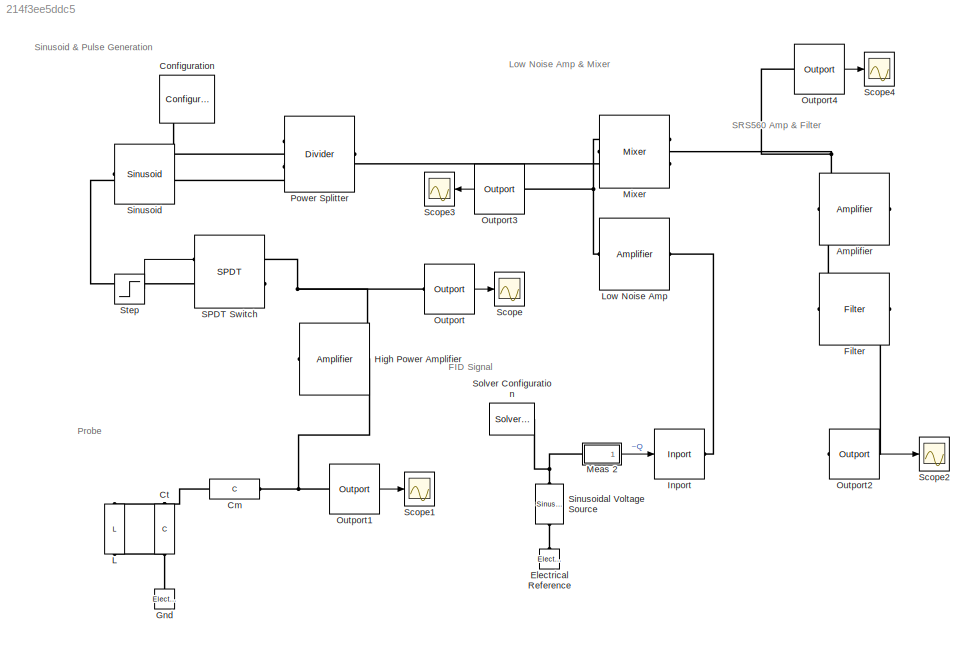
MODEL slx_214f3ee5ddc5
KIND model
CONFIG AbsTol = auto
CONFIG EnableMultiTasking = off
CONFIG FixedStep = auto
CONFIG MaxStep = auto
CONFIG MinStep = auto
CONFIG RelTol = 1e-3
CONFIG SampleTimeConstraint = Unconstrained
CONFIG SolverName = VariableStepAuto
CONFIG StartTime = 0.0
CONFIG StopTime = 500e-6
BLOCK [Reference] Amplifier  REF=simrfV2elements/Amplifier
  NameLocation = top
  Ports = [0, 0, 0, 0, 0, 1, 1]
  SourceBlock = simrfV2elements/Amplifier
  SourceProductBaseCode = RB
  SourceType = Amplifier
BLOCK [Reference] Cm  REF=simrfV2elements/C
  Ports = [0, 0, 0, 0, 0, 1, 1]
  SourceBlock = simrfV2elements/C
  SourceProductBaseCode = RB
  SourceType = Capacitor
BLOCK [Reference] Configuration  REF=simrfV2util1/Configuration
  NameLocation = top
  Ports = [0, 0, 0, 0, 0, 1]
  SourceBlock = simrfV2util1/Configuration
  SourceProductBaseCode = RB
  SourceType = Configuration
BLOCK [Reference] Ct  REF=simrfV2elements/C
  NameLocation = left
  Ports = [0, 0, 0, 0, 0, 1, 1]
  SourceBlock = simrfV2elements/C
  SourceProductBaseCode = RB
  SourceType = Capacitor
BLOCK [Reference] Electrical Reference  REF=fl_lib/Electrical/Electrical Elements/Electrical Reference
  NameLocation = right
  Ports = [0, 0, 0, 0, 0, 1]
  SourceBlock = fl_lib/Electrical/Electrical Elements/Electrical Reference
  SourceProductBaseCode = SS
  SourceType = Electrical Reference
BLOCK [Reference] Filter  REF=simrfV2elements/Filter
  NameLocation = top
  Ports = [0, 0, 0, 0, 0, 1, 1]
  SourceBlock = simrfV2elements/Filter
  SourceProductBaseCode = RB
  SourceType = Filter
  UserDataPersistent = on
BLOCK [Reference] Gnd  REF=simrfV2_lib/Elements/Electrical Reference
  Ports = [0, 0, 0, 0, 0, 1]
  SourceBlock = simrfV2_lib/Elements/Electrical Reference
  SourceProductBaseCode = RB
  SourceType = Electrical Reference
BLOCK [Reference] High Power Amplifier  REF=simrfV2elements/Amplifier
  NameLocation = top
  Ports = [0, 0, 0, 0, 0, 1, 1]
  SourceBlock = simrfV2elements/Amplifier
  SourceProductBaseCode = RB
  SourceType = Amplifier
BLOCK [Reference] Inport  REF=simrfV2util1/Inport
  Ports = [1, 0, 0, 0, 0, 0, 1]
  SourceBlock = simrfV2util1/Inport
  SourceProductBaseCode = RB
  SourceType = Inport
BLOCK [Reference] L  REF=simrfV2elements/L
  NameLocation = left
  Ports = [0, 0, 0, 0, 0, 1, 1]
  SourceBlock = simrfV2elements/L
  SourceProductBaseCode = RB
  SourceType = Inductor
BLOCK [Reference] Low Noise Amp  REF=simrfV2elements/Amplifier
  Ports = [0, 0, 0, 0, 0, 1, 1]
  SourceBlock = simrfV2elements/Amplifier
  SourceProductBaseCode = RB
  SourceType = Amplifier
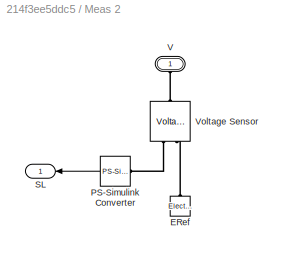
BLOCK [SubSystem] Meas 2
  Ports = [0, 1, 0, 0, 0, 1]
  RequestExecContextInheritance = off
BLOCK [Reference] Meas 2/ERef  REF=fl_lib/Electrical/Electrical Elements/Electrical Reference
  NameLocation = right
  Ports = [0, 0, 0, 0, 0, 1]
  SourceBlock = fl_lib/Electrical/Electrical Elements/Electrical Reference
  SourceProductName = Foundation Library
  SourceType = Electrical Reference
BLOCK [Reference] Meas 2/PS-Simulink Converter  REF=nesl_utility/PS-Simulink
Converter
  Ports = [0, 1, 0, 0, 0, 1]
  SourceBlock = nesl_utility/PS-Simulink\nConverter
  SourceProductName = Utilities
  SourceType = PS-Simulink\nConverter
BLOCK [Outport] Meas 2/SL
  SignalType = real
  VectorParamsAs1DForOutWhenUnconnected = off
BLOCK [PMIOPort] Meas 2/V
  NameLocation = right
  Side = Left
BLOCK [Reference] Meas 2/Voltage Sensor  REF=fl_lib/Electrical/Electrical Sensors/Voltage Sensor
  NameLocation = right
  Ports = [0, 0, 0, 0, 0, 1, 2]
  SourceBlock = fl_lib/Electrical/Electrical Sensors/Voltage Sensor
  SourceProductName = Foundation Library
  SourceType = Voltage Sensor
BLOCK [Reference] Mixer  REF=simrfV2elements/Mixer
  NameLocation = top
  Ports = [0, 0, 0, 0, 0, 2, 1]
  SourceBlock = simrfV2elements/Mixer
  SourceProductBaseCode = RB
  SourceType = Mixer
BLOCK [Reference] Outport  REF=simrfV2util1/Outport
  Ports = [0, 1, 0, 0, 0, 1]
  SourceBlock = simrfV2util1/Outport
  SourceProductBaseCode = RB
  SourceType = Outport
BLOCK [Reference] Outport1  REF=simrfV2util1/Outport
  Ports = [0, 1, 0, 0, 0, 1]
  SourceBlock = simrfV2util1/Outport
  SourceProductBaseCode = RB
  SourceType = Outport
BLOCK [Reference] Outport2  REF=simrfV2util1/Outport
  Ports = [0, 1, 0, 0, 0, 1]
  SourceBlock = simrfV2util1/Outport
  SourceProductBaseCode = RB
  SourceType = Outport
BLOCK [Reference] Outport3  REF=simrfV2util1/Outport
  Ports = [0, 1, 0, 0, 0, 1]
  SourceBlock = simrfV2util1/Outport
  SourceProductBaseCode = RB
  SourceType = Outport
BLOCK [Reference] Outport4  REF=simrfV2util1/Outport
  Ports = [0, 1, 0, 0, 0, 1]
  SourceBlock = simrfV2util1/Outport
  SourceProductBaseCode = RB
  SourceType = Outport
BLOCK [Reference] Power Splitter  REF=simrfV2junction1/Divider
  NameLocation = top
  Ports = [0, 0, 0, 0, 0, 2, 1]
  SourceBlock = simrfV2junction1/Divider
  SourceProductBaseCode = RB
  SourceType = Ideal Dividers
  UserDataPersistent = on
BLOCK [Reference] SPDT Switch  REF=simrfV2junction1/SPDT
  Ports = [1, 0, 0, 0, 0, 1, 2]
  SourceBlock = simrfV2junction1/SPDT
  SourceProductBaseCode = RB
  SourceType = Switch SPDT
BLOCK [Scope] Scope
  Floating = off
  NumInputPorts = 1
  Ports = [1]
  ScopeSpecificationString = Simulink.scopes.TimeScopeBlockCfg('CurrentConfiguration', extmgr.ConfigurationSet(extmgr.Configuration('Core','General UI',true),extmgr.Configuration('Core','Source UI',true),extmgr.Configuration('Sources','WiredSimulink',true),extmgr.Configuration('Visuals','Time Domain',true,'SerializedDisplays',{struct('MinYLimReal','-0.2639','MaxYLimReal','0.27029','YLabelReal','','MinYLimMag','0.00000','MaxYL...<+1399ch>
BLOCK [Scope] Scope1
  Floating = off
  NumInputPorts = 1
  Ports = [1]
  ScopeSpecificationString = Simulink.scopes.TimeScopeBlockCfg('CurrentConfiguration', extmgr.ConfigurationSet(extmgr.Configuration('Core','General UI',true),extmgr.Configuration('Core','Source UI',true),extmgr.Configuration('Sources','WiredSimulink',true,'DataLoggingVariableName','ScopeData1'),extmgr.Configuration('Visuals','Time Domain',true,'SerializedDisplays',{struct('MinYLimReal','-66.43236','MaxYLimReal','66.46356','YL...<+1459ch>
BLOCK [Scope] Scope2
  Floating = off
  NumInputPorts = 1
  Ports = [1]
  ScopeSpecificationString = Simulink.scopes.TimeScopeBlockCfg('CurrentConfiguration', extmgr.ConfigurationSet(extmgr.Configuration('Core','General UI',true),extmgr.Configuration('Core','Source UI',true),extmgr.Configuration('Sources','WiredSimulink',true,'DataLoggingVariableName','ScopeData2'),extmgr.Configuration('Visuals','Time Domain',true,'SerializedDisplays',{struct('MinYLimReal','-0.03214','MaxYLimReal','0.02366','YLab...<+1466ch>
BLOCK [Scope] Scope3
  Floating = off
  NumInputPorts = 1
  Ports = [1]
  ScopeSpecificationString = Simulink.scopes.TimeScopeBlockCfg('CurrentConfiguration', extmgr.ConfigurationSet(extmgr.Configuration('Core','General UI',true),extmgr.Configuration('Core','Source UI',true),extmgr.Configuration('Sources','WiredSimulink',true,'DataLoggingVariableName','ScopeData3'),extmgr.Configuration('Visuals','Time Domain',true,'SerializedDisplays',{struct('MinYLimReal','-6643.21945','MaxYLimReal','6646.37943'...<+1475ch>
BLOCK [Scope] Scope4
  Floating = off
  NumInputPorts = 1
  Ports = [1]
  ScopeSpecificationString = Simulink.scopes.TimeScopeBlockCfg('CurrentConfiguration', extmgr.ConfigurationSet(extmgr.Configuration('Core','General UI',true),extmgr.Configuration('Core','Source UI',true),extmgr.Configuration('Sources','WiredSimulink',true,'DataLoggingVariableName','ScopeData4'),extmgr.Configuration('Visuals','Time Domain',true,'SerializedDisplays',{struct('MinYLimReal','-0.00131','MaxYLimReal','0.00138','YLab...<+1453ch>
BLOCK [Reference] Sinusoid  REF=simrfV2sources1/Sinusoid
  Ports = [0, 0, 0, 0, 0, 1]
  SourceBlock = simrfV2sources1/Sinusoid
  SourceProductBaseCode = RB
  SourceType = Sinusoidal Source
BLOCK [Reference] Sinusoidal Voltage Source  REF=ee_lib/Additional
Components/SPICE Sources/Sinusoidal Voltage
Source
  NameLocation = right
  Ports = [0, 0, 0, 0, 0, 1, 1]
  SourceBlock = ee_lib/Additional\nComponents/SPICE Sources/Sinusoidal Voltage\nSource
  SourceProductBaseCode = PS
  SourceType = Sinusoidal Voltage\nSource
BLOCK [Reference] Solver Configuration  REF=nesl_utility/Solver
Configuration
  Ports = [0, 0, 0, 0, 0, 0, 1]
  SourceBlock = nesl_utility/Solver\nConfiguration
  SourceProductBaseCode = SS
  SourceType = Solver\nConfiguration
BLOCK [Step] Step
  After = 3.5
  SampleTime = 0
  Time = 5e-6
ANNOTATION (root): FID Signal
ANNOTATION (root): Probe
ANNOTATION (root): Sinusoid & Pulse Generation
ANNOTATION (root): SRS560 Amp & Filter
ANNOTATION (root): Low Noise Amp & Mixer
LINE Meas 2/PS-Simulink Converter:1 -> Meas 2/SL:1
LINE Meas 2:1 -> Inport:1
LINE Outport1:1 -> Scope1:1
LINE Outport2:1 -> Scope2:1
LINE Outport3:1 -> Scope3:1
LINE Outport4:1 -> Scope4:1
LINE Outport:1 -> Scope:1
LINE Step:1 -> SPDT Switch:1
PNET net1: Amplifier:LConn1 -- Mixer:RConn1 -- Outport4:LConn1
PLINE Amplifier:RConn1 -- Filter:LConn1
PNET net2: Cm:LConn1 -- Ct:LConn1 -- L:LConn1
PNET net3: Cm:RConn1 -- High Power Amplifier:RConn1 -- Outport1:LConn1
PNET net4: Configuration:LConn1 -- Power Splitter:RConn1 -- Sinusoid:LConn1
PNET net5: Ct:RConn1 -- Gnd:LConn1 -- L:RConn1
PLINE Electrical Reference:LConn1 -- Sinusoidal Voltage Source:RConn1
PLINE Filter:RConn1 -- Outport2:LConn1
PNET net6: High Power Amplifier:LConn1 -- Outport:LConn1 -- SPDT Switch:RConn1
PLINE Inport:RConn1 -- Low Noise Amp:LConn1
PNET net7: Low Noise Amp:RConn1 -- Mixer:LConn1 -- Outport3:LConn1
PLINE Meas 2/ERef:LConn1 -- Meas 2/Voltage Sensor:RConn2
PLINE Meas 2/PS-Simulink Converter:LConn1 -- Meas 2/Voltage Sensor:RConn1
PLINE Meas 2/V:RConn1 -- Meas 2/Voltage Sensor:LConn1
PNET net8: Meas 2:LConn1 -- Sinusoidal Voltage Source:LConn1 -- Solver Configuration:RConn1
PLINE Mixer:LConn2 -- Power Splitter:LConn2
PLINE Power Splitter:LConn1 -- SPDT Switch:LConn1
note: PNET lines group multi-terminal physical nets as a canonical sorted terminal list (undirected conserving connections); 2-terminal nets keep the pairwise PLINE form
